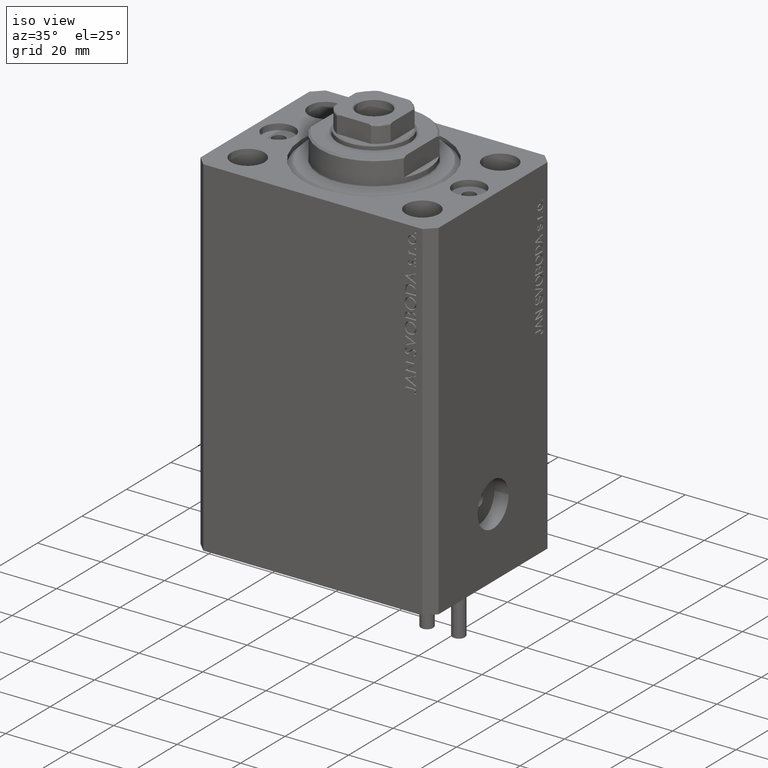
[diagram: clean part render]
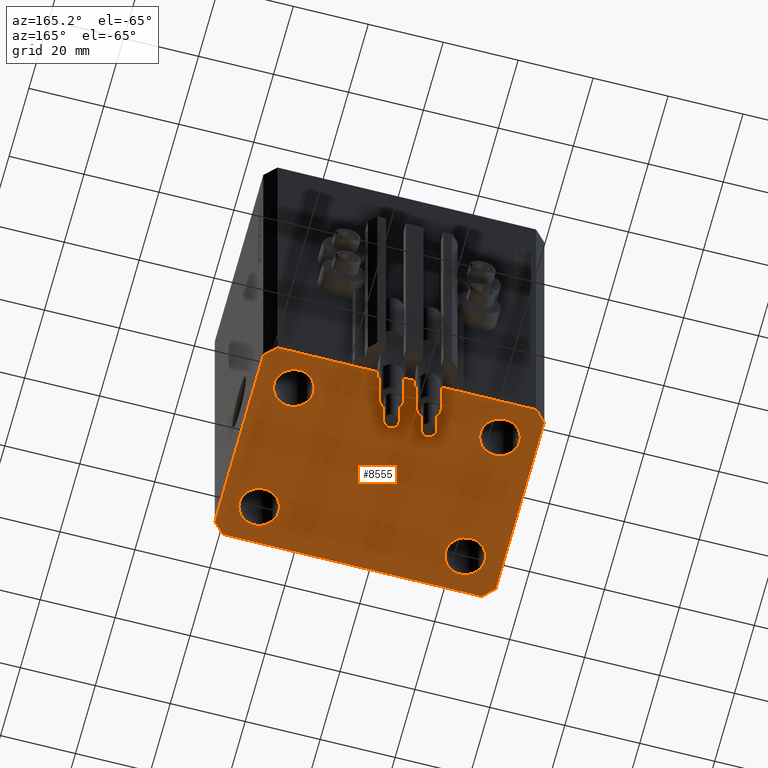
[diagram: tour spotlight — one face highlighted and labeled with its STEP entity id]
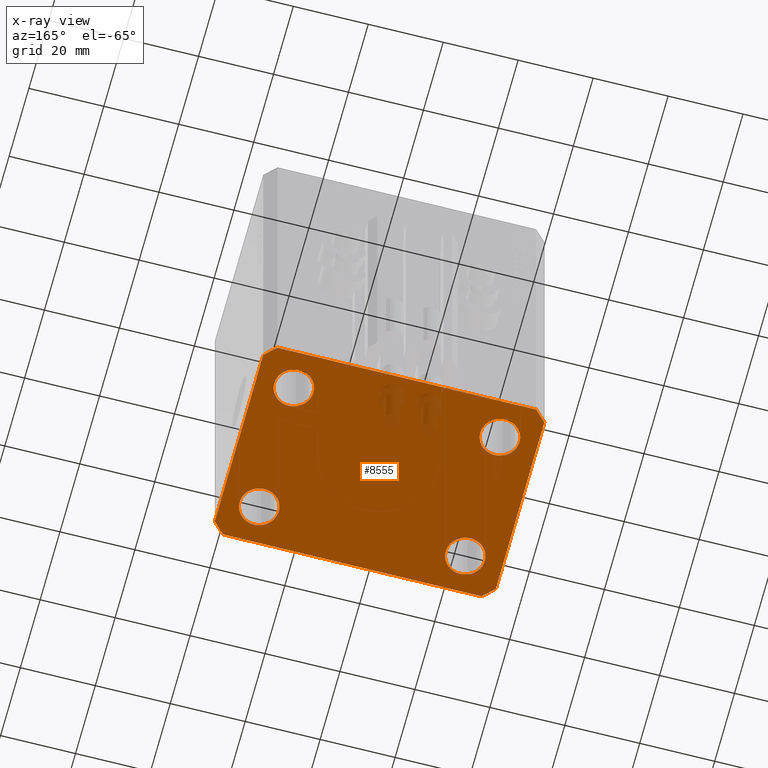
[diagram: x-ray of the same camera — body ghosted, this tour face saturated]
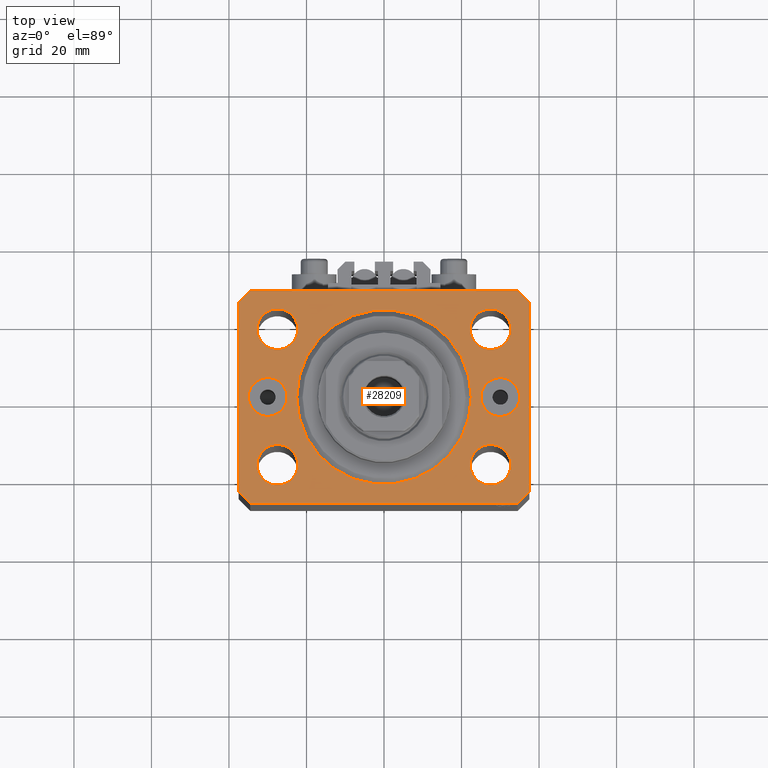
[diagram: tour spotlight — one face highlighted and labeled with its STEP entity id]
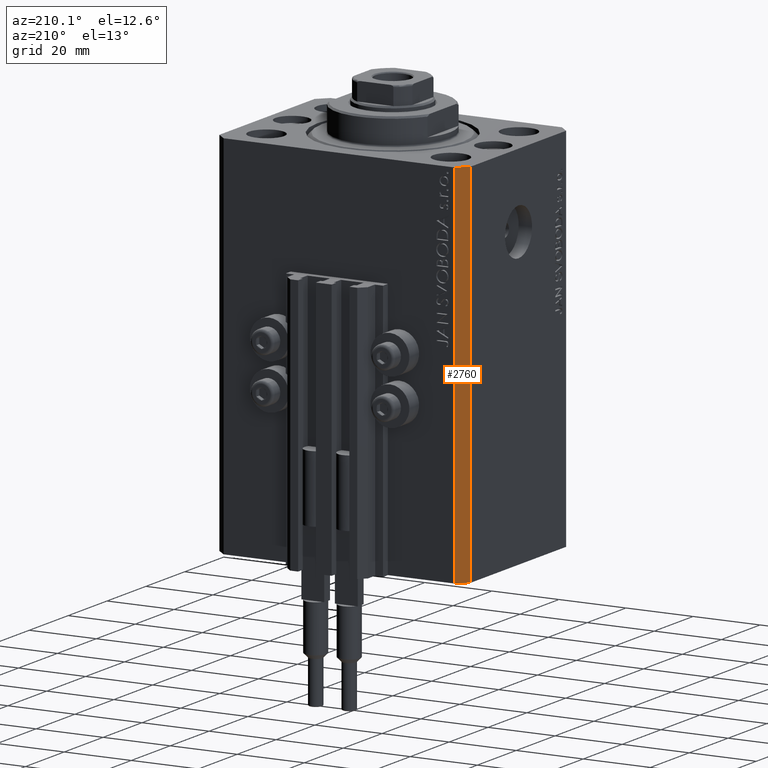
[diagram: tour spotlight — one face highlighted and labeled with its STEP entity id]
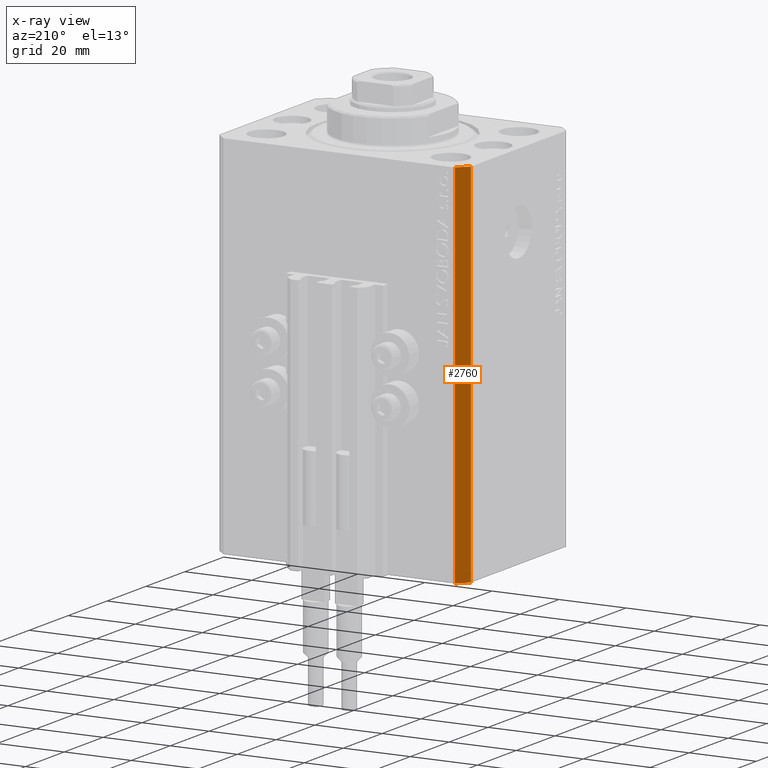
[diagram: x-ray of the same camera — body ghosted, this tour face saturated]
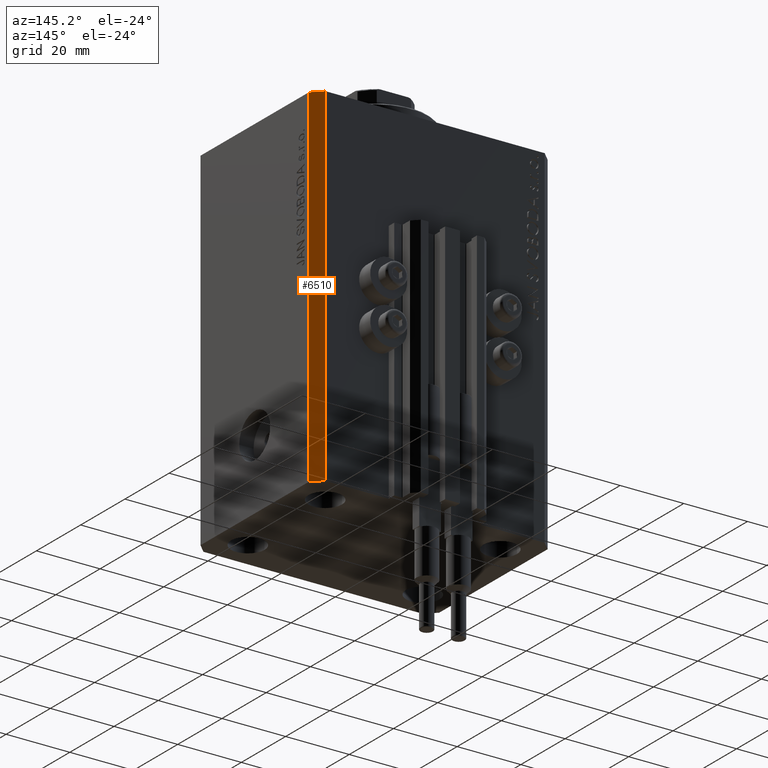
[diagram: tour spotlight — one face highlighted and labeled with its STEP entity id]
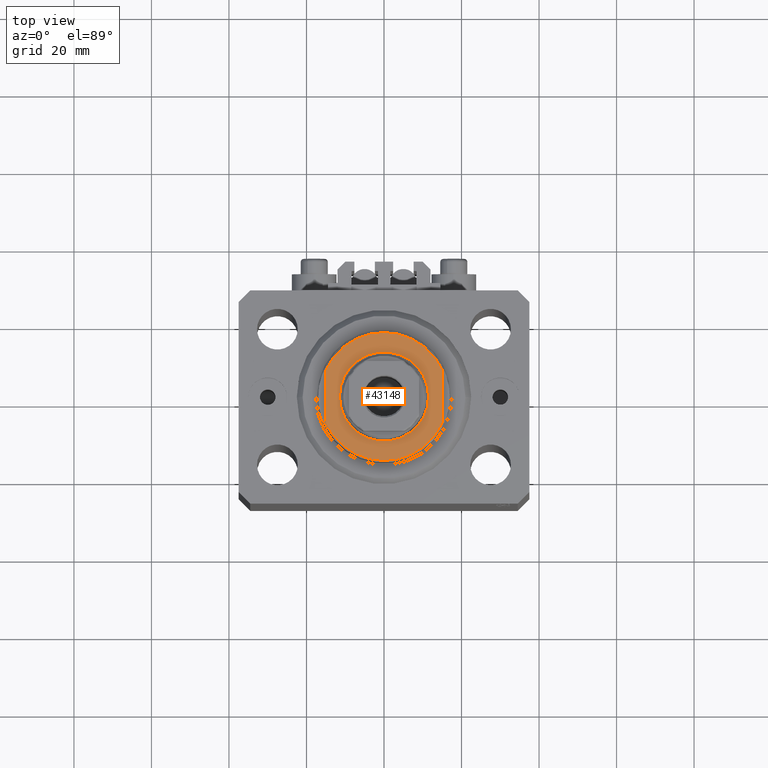
[diagram: tour spotlight — one face highlighted and labeled with its STEP entity id]
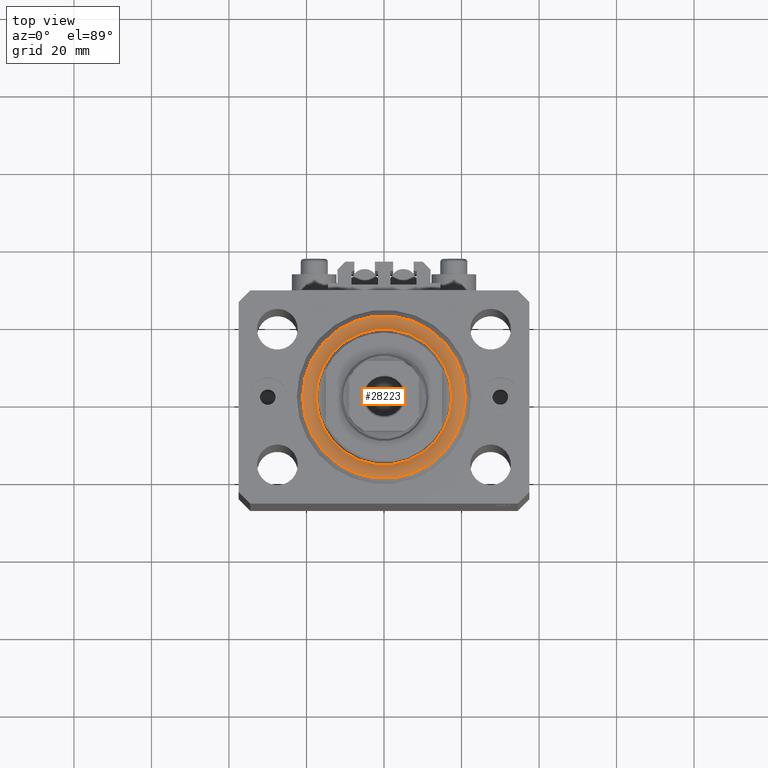
[diagram: tour spotlight — one face highlighted and labeled with its STEP entity id]
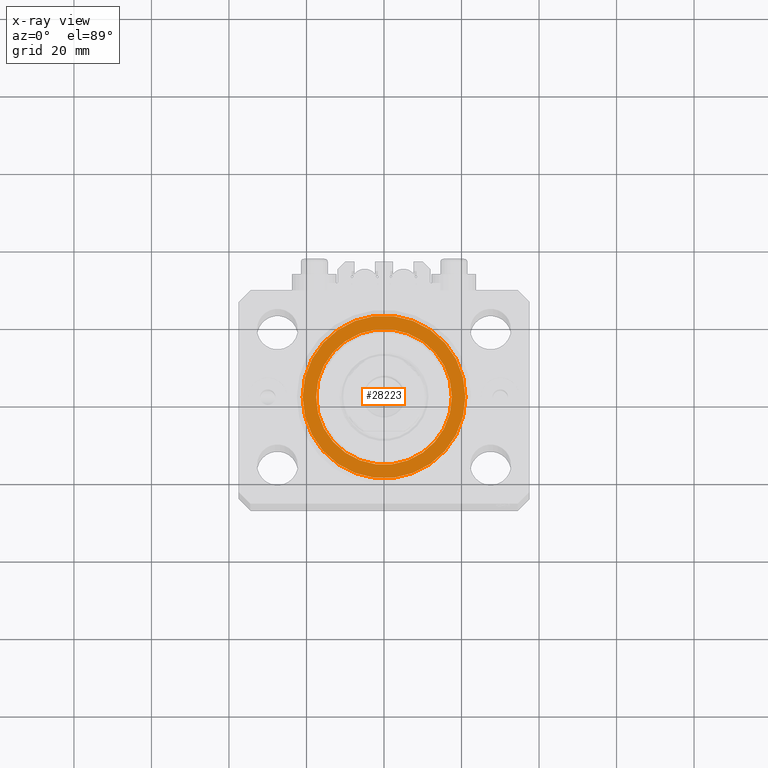
[diagram: x-ray of the same camera — body ghosted, this tour face saturated]
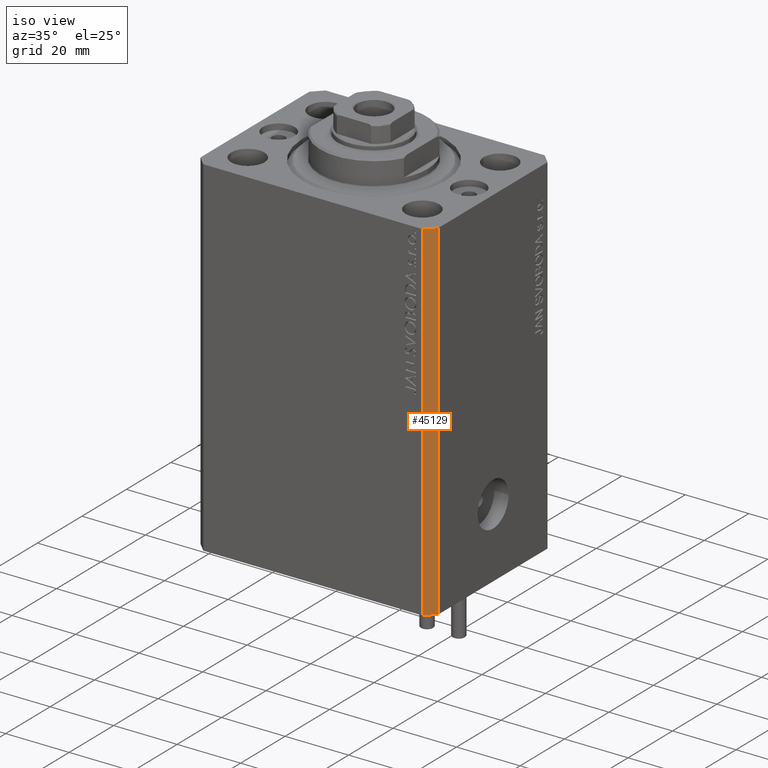
[diagram: tour spotlight — one face highlighted and labeled with its STEP entity id]
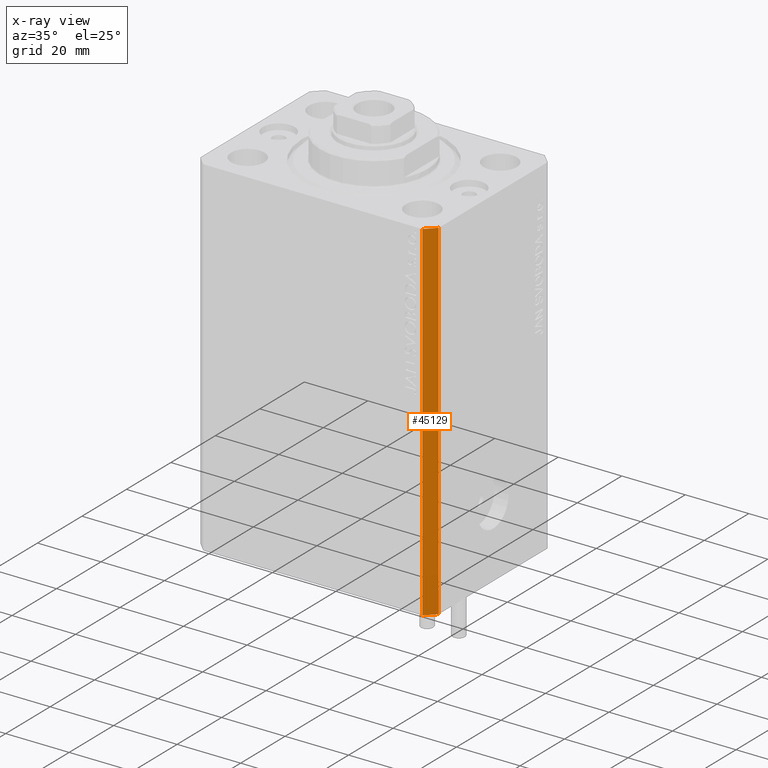
[diagram: x-ray of the same camera — body ghosted, this tour face saturated]
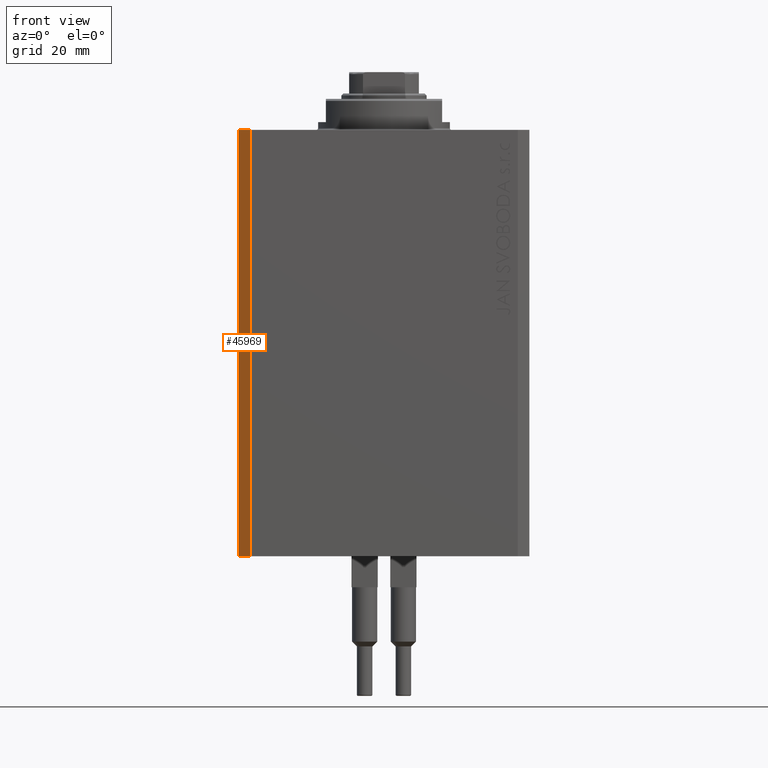
[diagram: tour spotlight — one face highlighted and labeled with its STEP entity id]
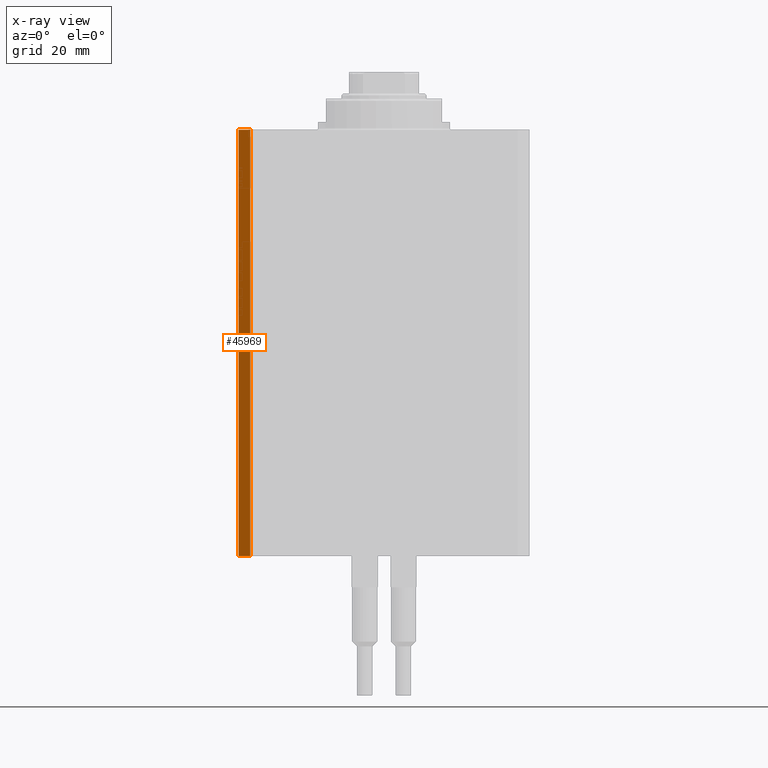
[diagram: x-ray of the same camera — body ghosted, this tour face saturated]
A machine part: a face-by-face anatomy tour. The part has 1085 B-rep faces; the first image is the clean iso view, then the 8 largest visible faces are spotlighted one at a time (largest first), each with its STEP entity span.

Face 1 — auxiliary view, entity #8555. An x-ray twin of the same camera follows (body ghosted, this face saturated) — the face is partly hidden behind the body. In plain terms, the highlighted planar face has unit normal (0, 0, 1).
Definition (entity closure, byte-faithful):
#218 = DIRECTION ( 'NONE',  ( 0.7071067811865474617, 0.7071067811865474617, 0.000000000000000000 ) ) ;
#393 = ORIENTED_EDGE ( 'NONE', *, *, #28480, .F. ) ;
#1232 = DIRECTION ( 'NONE',  ( -0.7071067811865471286, -0.7071067811865479058, 0.000000000000000000 ) ) ;
#1240 = LINE ( 'NONE', #27221, #12318 ) ;
#1631 = ORIENTED_EDGE ( 'NONE', *, *, #35757, .F. ) ;
#3232 = VECTOR ( 'NONE', #35034, 1000.000000000000114 ) ;
#3321 = VERTEX_POINT ( 'NONE', #41718 ) ;
#3470 = DIRECTION ( 'NONE',  ( 1.000000000000000000, 0.000000000000000000, 0.000000000000000000 ) ) ;
#3495 = VERTEX_POINT ( 'NONE', #22670 ) ;
#3697 = EDGE_CURVE ( 'NONE', #4683, #13049, #38661, .T. ) ;
#4078 = FACE_BOUND ( 'NONE', #13741, .T. ) ;
#4467 = DIRECTION ( 'NONE',  ( -1.000000000000000000, 0.000000000000000000, 0.000000000000000000 ) ) ;
#4631 = AXIS2_PLACEMENT_3D ( 'NONE', #47593, #10639, #8444 ) ;
#4683 = VERTEX_POINT ( 'NONE', #40195 ) ;
#4762 = EDGE_CURVE ( 'NONE', #46583, #26847, #1240, .T. ) ;
#5422 = LINE ( 'NONE', #20223, #3232 ) ;
#5515 = AXIS2_PLACEMENT_3D ( 'NONE', #37003, #6666, #7382 ) ;
#5527 = ORIENTED_EDGE ( 'NONE', *, *, #29708, .F. ) ;
#6666 = DIRECTION ( 'NONE',  ( -0.000000000000000000, -0.000000000000000000, -1.000000000000000000 ) ) ;
#7382 = DIRECTION ( 'NONE',  ( 1.000000000000000000, 0.000000000000000000, 0.000000000000000000 ) ) ;
#7570 = LINE ( 'NONE', #22376, #45602 ) ;
#8347 = VECTOR ( 'NONE', #1232, 1000.000000000000000 ) ;
#8385 = CARTESIAN_POINT ( 'NONE',  ( -34.49999999999998579, -27.49999999999999645, -110.0000000000000000 ) ) ;
#8444 = DIRECTION ( 'NONE',  ( 1.000000000000000000, 0.000000000000000000, 0.000000000000000000 ) ) ;
#8555 = ADVANCED_FACE ( 'NONE', ( #26166, #37830, #4078, #26663, #48051 ), #41000, .F. ) ;
#8717 = CARTESIAN_POINT ( 'NONE',  ( -22.24999999999999289, -17.50000000000000000, -110.0000000000000000 ) ) ;
#8985 = AXIS2_PLACEMENT_3D ( 'NONE', #28529, #47248, #28776 ) ;
#9046 = VERTEX_POINT ( 'NONE', #8717 ) ;
#9157 = EDGE_CURVE ( 'NONE', #46574, #9046, #12459, .T. ) ;
#10529 = ORIENTED_EDGE ( 'NONE', *, *, #41835, .F. ) ;
#10639 = DIRECTION ( 'NONE',  ( -0.000000000000000000, -0.000000000000000000, -1.000000000000000000 ) ) ;
#11166 = DIRECTION ( 'NONE',  ( 1.000000000000000000, 0.000000000000000000, 0.000000000000000000 ) ) ;
#11442 = ORIENTED_EDGE ( 'NONE', *, *, #38656, .F. ) ;
#12014 = CARTESIAN_POINT ( 'NONE',  ( 22.25000000000000000, 17.49999999999999289, -110.0000000000000000 ) ) ;
#12318 = VECTOR ( 'NONE', #42061, 1000.000000000000000 ) ;
#12459 = CIRCLE ( 'NONE', #5515, 5.250000000000000888 ) ;
#12915 = CARTESIAN_POINT ( 'NONE',  ( -27.49999999999999289, -17.50000000000000000, -110.0000000000000000 ) ) ;
#13049 = VERTEX_POINT ( 'NONE', #47015 ) ;
#13231 = CARTESIAN_POINT ( 'NONE',  ( -32.74999999999999289, -17.50000000000000000, -110.0000000000000000 ) ) ;
#13741 = EDGE_LOOP ( 'NONE', ( #10529, #41501 ) ) ;
#15020 = CARTESIAN_POINT ( 'NONE',  ( 34.49999999999999289, -27.49999999999999645, -110.0000000000000000 ) ) ;
#15735 = CARTESIAN_POINT ( 'NONE',  ( -34.49999999999998579, -27.49999999999999645, -110.0000000000000000 ) ) ;
#16294 = AXIS2_PLACEMENT_3D ( 'NONE', #35761, #39665, #46969 ) ;
#16328 = CIRCLE ( 'NONE', #28706, 5.250000000000000888 ) ;
#16672 = ORIENTED_EDGE ( 'NONE', *, *, #39296, .F. ) ;
#17092 = ORIENTED_EDGE ( 'NONE', *, *, #27562, .F. ) ;
#18719 = CIRCLE ( 'NONE', #16294, 5.250000000000000888 ) ;
#18994 = CARTESIAN_POINT ( 'NONE',  ( -34.49999999999999289, 27.50000000000000000, -110.0000000000000000 ) ) ;
#19347 = ORIENTED_EDGE ( 'NONE', *, *, #39805, .F. ) ;
#19371 = ORIENTED_EDGE ( 'NONE', *, *, #40806, .F. ) ;
#19917 = CARTESIAN_POINT ( 'NONE',  ( -34.49999999999999289, 27.50000000000000000, -110.0000000000000000 ) ) ;
#20223 = CARTESIAN_POINT ( 'NONE',  ( 37.50000000000051870, 24.49999999999995381, -110.0000000000000000 ) ) ;
#21155 = VERTEX_POINT ( 'NONE', #22035 ) ;
#21341 = DIRECTION ( 'NONE',  ( 1.000000000000000000, 0.000000000000000000, 0.000000000000000000 ) ) ;
#21996 = ORIENTED_EDGE ( 'NONE', *, *, #3697, .F. ) ;
#22035 = CARTESIAN_POINT ( 'NONE',  ( -32.75000000000000000, 17.49999999999999645, -110.0000000000000000 ) ) ;
#22185 = LINE ( 'NONE', #37504, #24175 ) ;
#22329 = EDGE_CURVE ( 'NONE', #3321, #25017, #22544, .T. ) ;
#22332 = CARTESIAN_POINT ( 'NONE',  ( 27.49999999999999289, -17.50000000000000000, -110.0000000000000000 ) ) ;
#22367 = AXIS2_PLACEMENT_3D ( 'NONE', #35680, #46886, #21341 ) ;
#22376 = CARTESIAN_POINT ( 'NONE',  ( 37.49999999999999289, -24.50000000000000000, -110.0000000000000000 ) ) ;
#22544 = LINE ( 'NONE', #15020, #29048 ) ;
#22670 = CARTESIAN_POINT ( 'NONE',  ( 37.50000000000051870, 24.49999999999995381, -110.0000000000000000 ) ) ;
#23003 = DIRECTION ( 'NONE',  ( 0.000000000000000000, 0.000000000000000000, 1.000000000000000000 ) ) ;
#23266 = AXIS2_PLACEMENT_3D ( 'NONE', #28109, #38569, #43172 ) ;
#23890 = EDGE_LOOP ( 'NONE', ( #37028, #19371 ) ) ;
#24047 = LINE ( 'NONE', #19917, #8347 ) ;
#24109 = EDGE_CURVE ( 'NONE', #41643, #21155, #40011, .T. ) ;
#24175 = VECTOR ( 'NONE', #4467, 1000.000000000000000 ) ;
#24679 = ORIENTED_EDGE ( 'NONE', *, *, #4762, .F. ) ;
#24981 = ORIENTED_EDGE ( 'NONE', *, *, #9157, .F. ) ;
#25017 = VERTEX_POINT ( 'NONE', #44578 ) ;
#25606 = AXIS2_PLACEMENT_3D ( 'NONE', #33697, #23003, #41491 ) ;
#26003 = CARTESIAN_POINT ( 'NONE',  ( -22.25000000000000000, 17.49999999999999645, -110.0000000000000000 ) ) ;
#26166 = FACE_BOUND ( 'NONE', #33141, .T. ) ;
#26663 = FACE_BOUND ( 'NONE', #23890, .T. ) ;
#26709 = VECTOR ( 'NONE', #39424, 1000.000000000000000 ) ;
#26847 = VERTEX_POINT ( 'NONE', #15735 ) ;
#27156 = CIRCLE ( 'NONE', #23266, 5.250000000000000888 ) ;
#27221 = CARTESIAN_POINT ( 'NONE',  ( -37.49999999999999289, -24.50000000000000000, -110.0000000000000000 ) ) ;
#27473 = ORIENTED_EDGE ( 'NONE', *, *, #38747, .F. ) ;
#27562 = EDGE_CURVE ( 'NONE', #39511, #43393, #24047, .T. ) ;
#27780 = ORIENTED_EDGE ( 'NONE', *, *, #22329, .F. ) ;
#28109 = CARTESIAN_POINT ( 'NONE',  ( 27.50000000000000000, 17.49999999999999289, -110.0000000000000000 ) ) ;
#28480 = EDGE_CURVE ( 'NONE', #25017, #3495, #7570, .T. ) ;
#28529 = CARTESIAN_POINT ( 'NONE',  ( -27.50000000000000000, 17.49999999999999645, -110.0000000000000000 ) ) ;
#28706 = AXIS2_PLACEMENT_3D ( 'NONE', #12915, #32314, #42816 ) ;
#28776 = DIRECTION ( 'NONE',  ( 1.000000000000000000, 0.000000000000000000, 0.000000000000000000 ) ) ;
#29048 = VECTOR ( 'NONE', #218, 1000.000000000000114 ) ;
#29708 = EDGE_CURVE ( 'NONE', #43393, #46583, #46966, .T. ) ;
#31198 = VERTEX_POINT ( 'NONE', #12014 ) ;
#31766 = CIRCLE ( 'NONE', #4631, 5.250000000000000888 ) ;
#31894 = CARTESIAN_POINT ( 'NONE',  ( -37.49999999999999289, 24.50000000000000000, -110.0000000000000000 ) ) ;
#32314 = DIRECTION ( 'NONE',  ( -0.000000000000000000, -0.000000000000000000, -1.000000000000000000 ) ) ;
#32691 = VERTEX_POINT ( 'NONE', #45933 ) ;
#33141 = EDGE_LOOP ( 'NONE', ( #1631, #24981 ) ) ;
#33697 = CARTESIAN_POINT ( 'NONE',  ( 0.000000000000000000, 0.000000000000000000, -110.0000000000000000 ) ) ;
#34636 = EDGE_CURVE ( 'NONE', #31198, #47628, #18719, .T. ) ;
#35034 = DIRECTION ( 'NONE',  ( -0.7071067811865364705, 0.7071067811865584529, 0.000000000000000000 ) ) ;
#35680 = CARTESIAN_POINT ( 'NONE',  ( 27.49999999999999289, -17.50000000000000000, -110.0000000000000000 ) ) ;
#35757 = EDGE_CURVE ( 'NONE', #9046, #46574, #16328, .T. ) ;
#35761 = CARTESIAN_POINT ( 'NONE',  ( 27.50000000000000000, 17.49999999999999289, -110.0000000000000000 ) ) ;
#37003 = CARTESIAN_POINT ( 'NONE',  ( -27.49999999999999289, -17.50000000000000000, -110.0000000000000000 ) ) ;
#37028 = ORIENTED_EDGE ( 'NONE', *, *, #24109, .F. ) ;
#37201 = DIRECTION ( 'NONE',  ( 1.076236605503979380E-14, 1.000000000000000000, 0.000000000000000000 ) ) ;
#37504 = CARTESIAN_POINT ( 'NONE',  ( 34.50000000000056843, 27.50000000000000000, -110.0000000000000000 ) ) ;
#37830 = FACE_BOUND ( 'NONE', #46519, .T. ) ;
#38244 = EDGE_LOOP ( 'NONE', ( #11442, #27473, #393, #27780, #16672, #24679, #5527, #17092 ) ) ;
#38569 = DIRECTION ( 'NONE',  ( -0.000000000000000000, -0.000000000000000000, -1.000000000000000000 ) ) ;
#38656 = EDGE_CURVE ( 'NONE', #32691, #39511, #22185, .T. ) ;
#38661 = CIRCLE ( 'NONE', #22367, 5.250000000000000888 ) ;
#38747 = EDGE_CURVE ( 'NONE', #3495, #32691, #5422, .T. ) ;
#39296 = EDGE_CURVE ( 'NONE', #26847, #3321, #41677, .T. ) ;
#39424 = DIRECTION ( 'NONE',  ( 0.000000000000000000, -1.000000000000000000, 0.000000000000000000 ) ) ;
#39511 = VERTEX_POINT ( 'NONE', #18994 ) ;
#39665 = DIRECTION ( 'NONE',  ( -0.000000000000000000, -0.000000000000000000, -1.000000000000000000 ) ) ;
#39805 = EDGE_CURVE ( 'NONE', #13049, #4683, #45721, .T. ) ;
#40011 = CIRCLE ( 'NONE', #8985, 5.250000000000000888 ) ;
#40195 = CARTESIAN_POINT ( 'NONE',  ( 32.74999999999999289, -17.50000000000000000, -110.0000000000000000 ) ) ;
#40806 = EDGE_CURVE ( 'NONE', #21155, #41643, #31766, .T. ) ;
#41000 = PLANE ( 'NONE',  #25606 ) ;
#41491 = DIRECTION ( 'NONE',  ( 1.000000000000000000, 0.000000000000000000, -0.000000000000000000 ) ) ;
#41501 = ORIENTED_EDGE ( 'NONE', *, *, #34636, .F. ) ;
#41549 = DIRECTION ( 'NONE',  ( -0.000000000000000000, -0.000000000000000000, -1.000000000000000000 ) ) ;
#41643 = VERTEX_POINT ( 'NONE', #26003 ) ;
#41677 = LINE ( 'NONE', #8385, #47488 ) ;
#41718 = CARTESIAN_POINT ( 'NONE',  ( 34.49999999999999289, -27.49999999999999645, -110.0000000000000000 ) ) ;
#41835 = EDGE_CURVE ( 'NONE', #47628, #31198, #27156, .T. ) ;
#42061 = DIRECTION ( 'NONE',  ( 0.7071067811865483499, -0.7071067811865466846, 0.000000000000000000 ) ) ;
#42538 = CARTESIAN_POINT ( 'NONE',  ( 32.75000000000000000, 17.49999999999999289, -110.0000000000000000 ) ) ;
#42816 = DIRECTION ( 'NONE',  ( 1.000000000000000000, 0.000000000000000000, 0.000000000000000000 ) ) ;
#43172 = DIRECTION ( 'NONE',  ( 1.000000000000000000, 0.000000000000000000, 0.000000000000000000 ) ) ;
#43393 = VERTEX_POINT ( 'NONE', #47119 ) ;
#44578 = CARTESIAN_POINT ( 'NONE',  ( 37.49999999999999289, -24.50000000000000000, -110.0000000000000000 ) ) ;
#45602 = VECTOR ( 'NONE', #37201, 1000.000000000000000 ) ;
#45721 = CIRCLE ( 'NONE', #46485, 5.250000000000000888 ) ;
#45933 = CARTESIAN_POINT ( 'NONE',  ( 34.50000000000056843, 27.50000000000000000, -110.0000000000000000 ) ) ;
#46485 = AXIS2_PLACEMENT_3D ( 'NONE', #22332, #41549, #11166 ) ;
#46519 = EDGE_LOOP ( 'NONE', ( #21996, #19347 ) ) ;
#46574 = VERTEX_POINT ( 'NONE', #13231 ) ;
#46583 = VERTEX_POINT ( 'NONE', #46771 ) ;
#46771 = CARTESIAN_POINT ( 'NONE',  ( -37.49999999999999289, -24.50000000000000000, -110.0000000000000000 ) ) ;
#46886 = DIRECTION ( 'NONE',  ( -0.000000000000000000, -0.000000000000000000, -1.000000000000000000 ) ) ;
#46966 = LINE ( 'NONE', #31894, #26709 ) ;
#46969 = DIRECTION ( 'NONE',  ( 1.000000000000000000, 0.000000000000000000, 0.000000000000000000 ) ) ;
#47015 = CARTESIAN_POINT ( 'NONE',  ( 22.24999999999999289, -17.50000000000000000, -110.0000000000000000 ) ) ;
#47119 = CARTESIAN_POINT ( 'NONE',  ( -37.49999999999999289, 24.50000000000000000, -110.0000000000000000 ) ) ;
#47248 = DIRECTION ( 'NONE',  ( -0.000000000000000000, -0.000000000000000000, -1.000000000000000000 ) ) ;
#47488 = VECTOR ( 'NONE', #3470, 1000.000000000000000 ) ;
#47593 = CARTESIAN_POINT ( 'NONE',  ( -27.50000000000000000, 17.49999999999999645, -110.0000000000000000 ) ) ;
#47628 = VERTEX_POINT ( 'NONE', #42538 ) ;
#48051 = FACE_OUTER_BOUND ( 'NONE', #38244, .T. ) ;

Face 2 — top view, entity #28209. In plain terms, the highlighted planar face has unit normal (0, 0, 1).
Definition (entity closure, byte-faithful):
#144 = LINE ( 'NONE', #22720, #15712 ) ;
#322 = EDGE_CURVE ( 'NONE', #39759, #38738, #35538, .T. ) ;
#369 = ORIENTED_EDGE ( 'NONE', *, *, #322, .T. ) ;
#420 = EDGE_CURVE ( 'NONE', #23906, #39562, #10293, .T. ) ;
#554 = AXIS2_PLACEMENT_3D ( 'NONE', #20574, #2118, #2349 ) ;
#1013 = DIRECTION ( 'NONE',  ( 0.000000000000000000, 0.000000000000000000, 1.000000000000000000 ) ) ;
#1023 = CARTESIAN_POINT ( 'NONE',  ( 27.50000000000000000, 17.49999999999999289, 0.000000000000000000 ) ) ;
#1505 = CIRCLE ( 'NONE', #13125, 5.250000000000000888 ) ;
#1755 = AXIS2_PLACEMENT_3D ( 'NONE', #25028, #2915, #17720 ) ;
#1827 = DIRECTION ( 'NONE',  ( 1.000000000000000000, 0.000000000000000000, 0.000000000000000000 ) ) ;
#2040 = EDGE_LOOP ( 'NONE', ( #10507, #21931 ) ) ;
#2118 = DIRECTION ( 'NONE',  ( 0.000000000000000000, 0.000000000000000000, 1.000000000000000000 ) ) ;
#2349 = DIRECTION ( 'NONE',  ( 1.000000000000000000, 0.000000000000000000, 0.000000000000000000 ) ) ;
#2843 = FACE_OUTER_BOUND ( 'NONE', #26124, .T. ) ;
#2915 = DIRECTION ( 'NONE',  ( 0.000000000000000000, 0.000000000000000000, 1.000000000000000000 ) ) ;
#2938 = EDGE_LOOP ( 'NONE', ( #27258, #22147 ) ) ;
#3267 = VERTEX_POINT ( 'NONE', #38307 ) ;
#3925 = CARTESIAN_POINT ( 'NONE',  ( -34.49999999999998579, -27.49999999999999645, 0.000000000000000000 ) ) ;
#4485 = CARTESIAN_POINT ( 'NONE',  ( -34.49999999999999289, 27.50000000000000000, 0.000000000000000000 ) ) ;
#4567 = VERTEX_POINT ( 'NONE', #41095 ) ;
#4890 = DIRECTION ( 'NONE',  ( 0.000000000000000000, 0.000000000000000000, 1.000000000000000000 ) ) ;
#5254 = CARTESIAN_POINT ( 'NONE',  ( -27.49999999999999289, -17.50000000000000000, 0.000000000000000000 ) ) ;
#5496 = CIRCLE ( 'NONE', #42703, 4.999999999999997335 ) ;
#5522 = EDGE_LOOP ( 'NONE', ( #6667, #30443 ) ) ;
#5752 = EDGE_CURVE ( 'NONE', #40557, #32837, #1505, .T. ) ;
#6226 = EDGE_CURVE ( 'NONE', #39562, #29481, #23167, .T. ) ;
#6332 = ORIENTED_EDGE ( 'NONE', *, *, #5752, .F. ) ;
#6583 = CARTESIAN_POINT ( 'NONE',  ( 34.99999999999999289, 0.000000000000000000, 0.000000000000000000 ) ) ;
#6667 = ORIENTED_EDGE ( 'NONE', *, *, #42405, .F. ) ;
#7225 = DIRECTION ( 'NONE',  ( 1.000000000000000000, 0.000000000000000000, -0.000000000000000000 ) ) ;
#7798 = VECTOR ( 'NONE', #10369, 1000.000000000000114 ) ;
#7808 = EDGE_CURVE ( 'NONE', #8490, #44165, #39660, .T. ) ;
#7857 = DIRECTION ( 'NONE',  ( 1.000000000000000000, 0.000000000000000000, 0.000000000000000000 ) ) ;
#8490 = VERTEX_POINT ( 'NONE', #29329 ) ;
#8537 = CIRCLE ( 'NONE', #35661, 5.250000000000000888 ) ;
#8968 = DIRECTION ( 'NONE',  ( 1.000000000000000000, 0.000000000000000000, 0.000000000000000000 ) ) ;
#9218 = VECTOR ( 'NONE', #40183, 1000.000000000000000 ) ;
#9494 = CIRCLE ( 'NONE', #33536, 5.250000000000000888 ) ;
#9769 = ORIENTED_EDGE ( 'NONE', *, *, #38923, .T. ) ;
#10293 = LINE ( 'NONE', #24866, #9218 ) ;
#10369 = DIRECTION ( 'NONE',  ( -0.7071067811865364705, 0.7071067811865584529, 0.000000000000000000 ) ) ;
#10375 = FACE_BOUND ( 'NONE', #31485, .T. ) ;
#10507 = ORIENTED_EDGE ( 'NONE', *, *, #45955, .F. ) ;
#10776 = ORIENTED_EDGE ( 'NONE', *, *, #23215, .F. ) ;
#10792 = VECTOR ( 'NONE', #42140, 1000.000000000000000 ) ;
#11488 = VERTEX_POINT ( 'NONE', #43123 ) ;
#12305 = CARTESIAN_POINT ( 'NONE',  ( 37.49999999999999289, -24.50000000000000000, 0.000000000000000000 ) ) ;
#12665 = EDGE_CURVE ( 'NONE', #31089, #30184, #32723, .T. ) ;
#12669 = EDGE_CURVE ( 'NONE', #15398, #4567, #14880, .T. ) ;
#13125 = AXIS2_PLACEMENT_3D ( 'NONE', #1023, #19219, #22378 ) ;
#13303 = CARTESIAN_POINT ( 'NONE',  ( 37.50000000000051870, 24.49999999999995381, 0.000000000000000000 ) ) ;
#13586 = EDGE_CURVE ( 'NONE', #47093, #45108, #28149, .T. ) ;
#13774 = DIRECTION ( 'NONE',  ( 0.7071067811865474617, 0.7071067811865474617, 0.000000000000000000 ) ) ;
#13851 = DIRECTION ( 'NONE',  ( 1.076236605503979380E-14, 1.000000000000000000, 0.000000000000000000 ) ) ;
#13971 = AXIS2_PLACEMENT_3D ( 'NONE', #46412, #43469, #35677 ) ;
#14437 = AXIS2_PLACEMENT_3D ( 'NONE', #22814, #19410, #8968 ) ;
#14733 = DIRECTION ( 'NONE',  ( 0.000000000000000000, 0.000000000000000000, 1.000000000000000000 ) ) ;
#14880 = CIRCLE ( 'NONE', #41307, 5.000000000000000888 ) ;
#15142 = EDGE_CURVE ( 'NONE', #36870, #3267, #23496, .T. ) ;
#15274 = CIRCLE ( 'NONE', #554, 22.50000000000000355 ) ;
#15398 = VERTEX_POINT ( 'NONE', #20848 ) ;
#15563 = DIRECTION ( 'NONE',  ( 1.000000000000000000, 0.000000000000000000, 0.000000000000000000 ) ) ;
#15633 = VECTOR ( 'NONE', #41583, 1000.000000000000000 ) ;
#15712 = VECTOR ( 'NONE', #34125, 1000.000000000000000 ) ;
#16231 = ORIENTED_EDGE ( 'NONE', *, *, #35939, .T. ) ;
#16595 = DIRECTION ( 'NONE',  ( 0.7071067811865483499, -0.7071067811865466846, 0.000000000000000000 ) ) ;
#17390 = ORIENTED_EDGE ( 'NONE', *, *, #46991, .T. ) ;
#17625 = EDGE_CURVE ( 'NONE', #11488, #34937, #9494, .T. ) ;
#17648 = CARTESIAN_POINT ( 'NONE',  ( 0.000000000000000000, 0.000000000000000000, 0.000000000000000000 ) ) ;
#17720 = DIRECTION ( 'NONE',  ( 1.000000000000000000, 0.000000000000000000, 0.000000000000000000 ) ) ;
#17976 = CARTESIAN_POINT ( 'NONE',  ( 22.25000000000000000, 17.49999999999999289, 0.000000000000000000 ) ) ;
#18296 = CARTESIAN_POINT ( 'NONE',  ( -27.49999999999999289, -17.50000000000000000, 0.000000000000000000 ) ) ;
#18508 = CARTESIAN_POINT ( 'NONE',  ( 37.50000000000051870, 24.49999999999995381, 0.000000000000000000 ) ) ;
#18607 = FACE_BOUND ( 'NONE', #22416, .T. ) ;
#19219 = DIRECTION ( 'NONE',  ( 0.000000000000000000, 0.000000000000000000, 1.000000000000000000 ) ) ;
#19410 = DIRECTION ( 'NONE',  ( 0.000000000000000000, 0.000000000000000000, 1.000000000000000000 ) ) ;
#19787 = AXIS2_PLACEMENT_3D ( 'NONE', #34272, #1013, #15563 ) ;
#20138 = CIRCLE ( 'NONE', #26353, 5.250000000000000888 ) ;
#20574 = CARTESIAN_POINT ( 'NONE',  ( 0.000000000000000000, 0.000000000000000000, 0.000000000000000000 ) ) ;
#20848 = CARTESIAN_POINT ( 'NONE',  ( -24.99999999999999645, 0.000000000000000000, 0.000000000000000000 ) ) ;
#21158 = VERTEX_POINT ( 'NONE', #44402 ) ;
#21844 = ORIENTED_EDGE ( 'NONE', *, *, #26975, .F. ) ;
#21931 = ORIENTED_EDGE ( 'NONE', *, *, #13586, .F. ) ;
#22147 = ORIENTED_EDGE ( 'NONE', *, *, #17625, .F. ) ;
#22378 = DIRECTION ( 'NONE',  ( 1.000000000000000000, 0.000000000000000000, 0.000000000000000000 ) ) ;
#22416 = EDGE_LOOP ( 'NONE', ( #44592, #21844 ) ) ;
#22720 = CARTESIAN_POINT ( 'NONE',  ( -37.49999999999999289, 24.50000000000000000, 0.000000000000000000 ) ) ;
#22814 = CARTESIAN_POINT ( 'NONE',  ( -30.00000000000000000, 0.000000000000000000, 0.000000000000000000 ) ) ;
#22883 = CARTESIAN_POINT ( 'NONE',  ( -22.24999999999999289, -17.50000000000000000, 0.000000000000000000 ) ) ;
#23091 = LINE ( 'NONE', #3925, #15633 ) ;
#23167 = LINE ( 'NONE', #4485, #10792 ) ;
#23215 = EDGE_CURVE ( 'NONE', #32837, #40557, #31442, .T. ) ;
#23284 = VECTOR ( 'NONE', #16595, 1000.000000000000000 ) ;
#23496 = CIRCLE ( 'NONE', #33581, 5.250000000000000888 ) ;
#23603 = CARTESIAN_POINT ( 'NONE',  ( -34.49999999999999289, 27.50000000000000000, 0.000000000000000000 ) ) ;
#23906 = VERTEX_POINT ( 'NONE', #33431 ) ;
#24265 = CARTESIAN_POINT ( 'NONE',  ( -22.50000000000000355, 2.755455298081544383E-15, 0.000000000000000000 ) ) ;
#24389 = ORIENTED_EDGE ( 'NONE', *, *, #28982, .F. ) ;
#24605 = AXIS2_PLACEMENT_3D ( 'NONE', #17648, #29310, #7225 ) ;
#24866 = CARTESIAN_POINT ( 'NONE',  ( 34.50000000000056843, 27.50000000000000000, 0.000000000000000000 ) ) ;
#24957 = CARTESIAN_POINT ( 'NONE',  ( 34.49999999999999289, -27.49999999999999645, 0.000000000000000000 ) ) ;
#25028 = CARTESIAN_POINT ( 'NONE',  ( -27.50000000000000000, 17.49999999999999645, 0.000000000000000000 ) ) ;
#25680 = DIRECTION ( 'NONE',  ( 1.000000000000000000, 0.000000000000000000, 0.000000000000000000 ) ) ;
#26073 = ORIENTED_EDGE ( 'NONE', *, *, #12669, .F. ) ;
#26099 = CARTESIAN_POINT ( 'NONE',  ( -37.49999999999999289, 24.50000000000000000, 0.000000000000000000 ) ) ;
#26124 = EDGE_LOOP ( 'NONE', ( #44065, #28328, #31386, #34762, #9769, #47152, #16231, #33845 ) ) ;
#26353 = AXIS2_PLACEMENT_3D ( 'NONE', #5254, #41951, #38769 ) ;
#26921 = DIRECTION ( 'NONE',  ( 1.000000000000000000, 0.000000000000000000, 0.000000000000000000 ) ) ;
#26975 = EDGE_CURVE ( 'NONE', #34881, #21158, #15274, .T. ) ;
#27088 = DIRECTION ( 'NONE',  ( 0.000000000000000000, -0.000000000000000000, -1.000000000000000000 ) ) ;
#27251 = DIRECTION ( 'NONE',  ( 0.000000000000000000, 0.000000000000000000, 1.000000000000000000 ) ) ;
#27258 = ORIENTED_EDGE ( 'NONE', *, *, #44623, .F. ) ;
#27459 = DIRECTION ( 'NONE',  ( 1.000000000000000000, 0.000000000000000000, 0.000000000000000000 ) ) ;
#27467 = AXIS2_PLACEMENT_3D ( 'NONE', #43857, #36548, #47505 ) ;
#27931 = CARTESIAN_POINT ( 'NONE',  ( -27.50000000000000000, 17.49999999999999645, 0.000000000000000000 ) ) ;
#28070 = VECTOR ( 'NONE', #13774, 1000.000000000000114 ) ;
#28149 = CIRCLE ( 'NONE', #1755, 5.250000000000000888 ) ;
#28209 = ADVANCED_FACE ( 'NONE', ( #2843, #40018, #33185, #47558, #40751, #18607, #10375, #40258 ), #36841, .T. ) ;
#28328 = ORIENTED_EDGE ( 'NONE', *, *, #6226, .T. ) ;
#28802 = CARTESIAN_POINT ( 'NONE',  ( 34.49999999999999289, -27.49999999999999645, 0.000000000000000000 ) ) ;
#28832 = CARTESIAN_POINT ( 'NONE',  ( -32.75000000000000000, 17.49999999999999645, 0.000000000000000000 ) ) ;
#28982 = EDGE_CURVE ( 'NONE', #4567, #15398, #29183, .T. ) ;
#29183 = CIRCLE ( 'NONE', #14437, 5.000000000000000888 ) ;
#29310 = DIRECTION ( 'NONE',  ( 0.000000000000000000, 0.000000000000000000, 1.000000000000000000 ) ) ;
#29329 = CARTESIAN_POINT ( 'NONE',  ( -37.49999999999999289, -24.50000000000000000, 0.000000000000000000 ) ) ;
#29384 = EDGE_CURVE ( 'NONE', #21158, #34881, #35969, .T. ) ;
#29481 = VERTEX_POINT ( 'NONE', #26099 ) ;
#30184 = VERTEX_POINT ( 'NONE', #12305 ) ;
#30443 = ORIENTED_EDGE ( 'NONE', *, *, #15142, .F. ) ;
#30616 = VERTEX_POINT ( 'NONE', #18508 ) ;
#31089 = VERTEX_POINT ( 'NONE', #28802 ) ;
#31386 = ORIENTED_EDGE ( 'NONE', *, *, #32023, .T. ) ;
#31442 = CIRCLE ( 'NONE', #19787, 5.250000000000000888 ) ;
#31448 = CARTESIAN_POINT ( 'NONE',  ( 30.00000000000000000, 0.000000000000000000, 0.000000000000000000 ) ) ;
#31485 = EDGE_LOOP ( 'NONE', ( #26073, #24389 ) ) ;
#31632 = CARTESIAN_POINT ( 'NONE',  ( 25.00000000000000000, 6.123233995736762338E-16, 0.000000000000000000 ) ) ;
#31836 = CIRCLE ( 'NONE', #13971, 5.250000000000000888 ) ;
#32023 = EDGE_CURVE ( 'NONE', #29481, #8490, #144, .T. ) ;
#32582 = VECTOR ( 'NONE', #13851, 1000.000000000000000 ) ;
#32723 = LINE ( 'NONE', #24957, #28070 ) ;
#32837 = VERTEX_POINT ( 'NONE', #42528 ) ;
#33185 = FACE_BOUND ( 'NONE', #37262, .T. ) ;
#33431 = CARTESIAN_POINT ( 'NONE',  ( 34.50000000000056843, 27.50000000000000000, 0.000000000000000000 ) ) ;
#33536 = AXIS2_PLACEMENT_3D ( 'NONE', #18296, #47720, #7857 ) ;
#33581 = AXIS2_PLACEMENT_3D ( 'NONE', #38434, #27251, #42567 ) ;
#33845 = ORIENTED_EDGE ( 'NONE', *, *, #47138, .T. ) ;
#34125 = DIRECTION ( 'NONE',  ( 0.000000000000000000, -1.000000000000000000, 0.000000000000000000 ) ) ;
#34272 = CARTESIAN_POINT ( 'NONE',  ( 27.50000000000000000, 17.49999999999999289, 0.000000000000000000 ) ) ;
#34762 = ORIENTED_EDGE ( 'NONE', *, *, #7808, .T. ) ;
#34881 = VERTEX_POINT ( 'NONE', #24265 ) ;
#34937 = VERTEX_POINT ( 'NONE', #22883 ) ;
#35538 = CIRCLE ( 'NONE', #39442, 4.999999999999997335 ) ;
#35661 = AXIS2_PLACEMENT_3D ( 'NONE', #27931, #4890, #27459 ) ;
#35677 = DIRECTION ( 'NONE',  ( 1.000000000000000000, 0.000000000000000000, 0.000000000000000000 ) ) ;
#35755 = CARTESIAN_POINT ( 'NONE',  ( -37.49999999999999289, -24.50000000000000000, 0.000000000000000000 ) ) ;
#35859 = LINE ( 'NONE', #13303, #7798 ) ;
#35939 = EDGE_CURVE ( 'NONE', #30184, #30616, #47879, .T. ) ;
#35969 = CIRCLE ( 'NONE', #27467, 22.50000000000000355 ) ;
#36548 = DIRECTION ( 'NONE',  ( 0.000000000000000000, 0.000000000000000000, 1.000000000000000000 ) ) ;
#36841 = PLANE ( 'NONE',  #24605 ) ;
#36870 = VERTEX_POINT ( 'NONE', #47651 ) ;
#37262 = EDGE_LOOP ( 'NONE', ( #10776, #6332 ) ) ;
#37511 = CARTESIAN_POINT ( 'NONE',  ( -34.49999999999998579, -27.49999999999999645, 0.000000000000000000 ) ) ;
#38146 = CARTESIAN_POINT ( 'NONE',  ( -22.25000000000000000, 17.49999999999999645, 0.000000000000000000 ) ) ;
#38307 = CARTESIAN_POINT ( 'NONE',  ( 32.74999999999999289, -17.50000000000000000, 0.000000000000000000 ) ) ;
#38434 = CARTESIAN_POINT ( 'NONE',  ( 27.49999999999999289, -17.50000000000000000, 0.000000000000000000 ) ) ;
#38738 = VERTEX_POINT ( 'NONE', #31632 ) ;
#38769 = DIRECTION ( 'NONE',  ( 1.000000000000000000, 0.000000000000000000, 0.000000000000000000 ) ) ;
#38923 = EDGE_CURVE ( 'NONE', #44165, #31089, #23091, .T. ) ;
#39442 = AXIS2_PLACEMENT_3D ( 'NONE', #31448, #27088, #1827 ) ;
#39562 = VERTEX_POINT ( 'NONE', #23603 ) ;
#39660 = LINE ( 'NONE', #35755, #23284 ) ;
#39759 = VERTEX_POINT ( 'NONE', #6583 ) ;
#40018 = FACE_BOUND ( 'NONE', #2040, .T. ) ;
#40183 = DIRECTION ( 'NONE',  ( -1.000000000000000000, 0.000000000000000000, 0.000000000000000000 ) ) ;
#40258 = FACE_BOUND ( 'NONE', #47978, .T. ) ;
#40264 = CARTESIAN_POINT ( 'NONE',  ( -30.00000000000000000, 0.000000000000000000, 0.000000000000000000 ) ) ;
#40557 = VERTEX_POINT ( 'NONE', #17976 ) ;
#40751 = FACE_BOUND ( 'NONE', #2938, .T. ) ;
#41095 = CARTESIAN_POINT ( 'NONE',  ( -34.99999999999999289, 6.123233995736768255E-16, 0.000000000000000000 ) ) ;
#41307 = AXIS2_PLACEMENT_3D ( 'NONE', #40264, #14733, #25680 ) ;
#41583 = DIRECTION ( 'NONE',  ( 1.000000000000000000, 0.000000000000000000, 0.000000000000000000 ) ) ;
#41951 = DIRECTION ( 'NONE',  ( 0.000000000000000000, 0.000000000000000000, 1.000000000000000000 ) ) ;
#42140 = DIRECTION ( 'NONE',  ( -0.7071067811865471286, -0.7071067811865479058, 0.000000000000000000 ) ) ;
#42405 = EDGE_CURVE ( 'NONE', #3267, #36870, #31836, .T. ) ;
#42477 = CARTESIAN_POINT ( 'NONE',  ( 30.00000000000000000, 0.000000000000000000, 0.000000000000000000 ) ) ;
#42528 = CARTESIAN_POINT ( 'NONE',  ( 32.75000000000000000, 17.49999999999999289, 0.000000000000000000 ) ) ;
#42567 = DIRECTION ( 'NONE',  ( 1.000000000000000000, 0.000000000000000000, 0.000000000000000000 ) ) ;
#42703 = AXIS2_PLACEMENT_3D ( 'NONE', #42477, #42719, #26921 ) ;
#42719 = DIRECTION ( 'NONE',  ( 0.000000000000000000, -0.000000000000000000, -1.000000000000000000 ) ) ;
#43123 = CARTESIAN_POINT ( 'NONE',  ( -32.74999999999999289, -17.50000000000000000, 0.000000000000000000 ) ) ;
#43469 = DIRECTION ( 'NONE',  ( 0.000000000000000000, 0.000000000000000000, 1.000000000000000000 ) ) ;
#43857 = CARTESIAN_POINT ( 'NONE',  ( 0.000000000000000000, 0.000000000000000000, 0.000000000000000000 ) ) ;
#44065 = ORIENTED_EDGE ( 'NONE', *, *, #420, .T. ) ;
#44165 = VERTEX_POINT ( 'NONE', #37511 ) ;
#44224 = CARTESIAN_POINT ( 'NONE',  ( 37.49999999999999289, -24.50000000000000000, 0.000000000000000000 ) ) ;
#44402 = CARTESIAN_POINT ( 'NONE',  ( 22.50000000000000355, 0.000000000000000000, 0.000000000000000000 ) ) ;
#44592 = ORIENTED_EDGE ( 'NONE', *, *, #29384, .F. ) ;
#44623 = EDGE_CURVE ( 'NONE', #34937, #11488, #20138, .T. ) ;
#45108 = VERTEX_POINT ( 'NONE', #38146 ) ;
#45955 = EDGE_CURVE ( 'NONE', #45108, #47093, #8537, .T. ) ;
#46412 = CARTESIAN_POINT ( 'NONE',  ( 27.49999999999999289, -17.50000000000000000, 0.000000000000000000 ) ) ;
#46991 = EDGE_CURVE ( 'NONE', #38738, #39759, #5496, .T. ) ;
#47093 = VERTEX_POINT ( 'NONE', #28832 ) ;
#47138 = EDGE_CURVE ( 'NONE', #30616, #23906, #35859, .T. ) ;
#47152 = ORIENTED_EDGE ( 'NONE', *, *, #12665, .T. ) ;
#47505 = DIRECTION ( 'NONE',  ( 1.000000000000000000, 0.000000000000000000, 0.000000000000000000 ) ) ;
#47558 = FACE_BOUND ( 'NONE', #5522, .T. ) ;
#47651 = CARTESIAN_POINT ( 'NONE',  ( 22.24999999999999289, -17.50000000000000000, 0.000000000000000000 ) ) ;
#47720 = DIRECTION ( 'NONE',  ( 0.000000000000000000, 0.000000000000000000, 1.000000000000000000 ) ) ;
#47879 = LINE ( 'NONE', #44224, #32582 ) ;
#47978 = EDGE_LOOP ( 'NONE', ( #369, #17390 ) ) ;

Face 3 — auxiliary view, entity #2760. An x-ray twin of the same camera follows (body ghosted, this face saturated) — the face is partly hidden behind the body. In plain terms, the highlighted planar face has unit normal (-0.7071, 0.7071, 0).
Definition (entity closure, byte-faithful):
#1232 = DIRECTION ( 'NONE',  ( -0.7071067811865471286, -0.7071067811865479058, 0.000000000000000000 ) ) ;
#2760 = ADVANCED_FACE ( 'NONE', ( #30215 ), #7874, .T. ) ;
#3796 = CARTESIAN_POINT ( 'NONE',  ( -34.49999999999999289, 27.50000000000000000, -110.0000000000000000 ) ) ;
#3835 = EDGE_CURVE ( 'NONE', #43393, #29481, #7733, .T. ) ;
#4485 = CARTESIAN_POINT ( 'NONE',  ( -34.49999999999999289, 27.50000000000000000, 0.000000000000000000 ) ) ;
#6226 = EDGE_CURVE ( 'NONE', #39562, #29481, #23167, .T. ) ;
#7022 = VECTOR ( 'NONE', #18596, 1000.000000000000000 ) ;
#7733 = LINE ( 'NONE', #37368, #27788 ) ;
#7874 = PLANE ( 'NONE',  #29417 ) ;
#8347 = VECTOR ( 'NONE', #1232, 1000.000000000000000 ) ;
#9648 = EDGE_CURVE ( 'NONE', #39511, #39562, #37067, .T. ) ;
#10792 = VECTOR ( 'NONE', #42140, 1000.000000000000000 ) ;
#18321 = ORIENTED_EDGE ( 'NONE', *, *, #6226, .F. ) ;
#18596 = DIRECTION ( 'NONE',  ( 0.000000000000000000, 0.000000000000000000, 1.000000000000000000 ) ) ;
#18766 = EDGE_LOOP ( 'NONE', ( #18321, #42693, #26113, #43695 ) ) ;
#18994 = CARTESIAN_POINT ( 'NONE',  ( -34.49999999999999289, 27.50000000000000000, -110.0000000000000000 ) ) ;
#19038 = CARTESIAN_POINT ( 'NONE',  ( -34.49999999999999289, 27.50000000000000000, -110.0000000000000000 ) ) ;
#19917 = CARTESIAN_POINT ( 'NONE',  ( -34.49999999999999289, 27.50000000000000000, -110.0000000000000000 ) ) ;
#23167 = LINE ( 'NONE', #4485, #10792 ) ;
#23603 = CARTESIAN_POINT ( 'NONE',  ( -34.49999999999999289, 27.50000000000000000, 0.000000000000000000 ) ) ;
#24047 = LINE ( 'NONE', #19917, #8347 ) ;
#25722 = DIRECTION ( 'NONE',  ( 0.000000000000000000, 0.000000000000000000, 1.000000000000000000 ) ) ;
#26099 = CARTESIAN_POINT ( 'NONE',  ( -37.49999999999999289, 24.50000000000000000, 0.000000000000000000 ) ) ;
#26113 = ORIENTED_EDGE ( 'NONE', *, *, #27562, .T. ) ;
#27562 = EDGE_CURVE ( 'NONE', #39511, #43393, #24047, .T. ) ;
#27788 = VECTOR ( 'NONE', #25722, 1000.000000000000000 ) ;
#29417 = AXIS2_PLACEMENT_3D ( 'NONE', #19038, #40696, #37518 ) ;
#29481 = VERTEX_POINT ( 'NONE', #26099 ) ;
#30215 = FACE_OUTER_BOUND ( 'NONE', #18766, .T. ) ;
#37067 = LINE ( 'NONE', #3796, #7022 ) ;
#37368 = CARTESIAN_POINT ( 'NONE',  ( -37.49999999999999289, 24.50000000000000000, -110.0000000000000000 ) ) ;
#37518 = DIRECTION ( 'NONE',  ( -0.7071067811865471286, -0.7071067811865479058, 0.000000000000000000 ) ) ;
#39511 = VERTEX_POINT ( 'NONE', #18994 ) ;
#39562 = VERTEX_POINT ( 'NONE', #23603 ) ;
#40696 = DIRECTION ( 'NONE',  ( -0.7071067811865479058, 0.7071067811865471286, 0.000000000000000000 ) ) ;
#42140 = DIRECTION ( 'NONE',  ( -0.7071067811865471286, -0.7071067811865479058, 0.000000000000000000 ) ) ;
#42693 = ORIENTED_EDGE ( 'NONE', *, *, #9648, .F. ) ;
#43393 = VERTEX_POINT ( 'NONE', #47119 ) ;
#43695 = ORIENTED_EDGE ( 'NONE', *, *, #3835, .T. ) ;
#47119 = CARTESIAN_POINT ( 'NONE',  ( -37.49999999999999289, 24.50000000000000000, -110.0000000000000000 ) ) ;

Face 4 — auxiliary view, entity #6510. In plain terms, the highlighted planar face has unit normal (0.7071, 0.7071, 0).
Definition (entity closure, byte-faithful):
#3232 = VECTOR ( 'NONE', #35034, 1000.000000000000114 ) ;
#3495 = VERTEX_POINT ( 'NONE', #22670 ) ;
#3499 = VECTOR ( 'NONE', #28412, 1000.000000000000000 ) ;
#4653 = DIRECTION ( 'NONE',  ( 0.000000000000000000, 0.000000000000000000, 1.000000000000000000 ) ) ;
#5422 = LINE ( 'NONE', #20223, #3232 ) ;
#5620 = LINE ( 'NONE', #9011, #3499 ) ;
#6510 = ADVANCED_FACE ( 'NONE', ( #18602 ), #43668, .T. ) ;
#7454 = CARTESIAN_POINT ( 'NONE',  ( 37.50000000000051870, 24.49999999999995381, -110.0000000000000000 ) ) ;
#7798 = VECTOR ( 'NONE', #10369, 1000.000000000000114 ) ;
#9011 = CARTESIAN_POINT ( 'NONE',  ( 37.50000000000051870, 24.49999999999995381, -110.0000000000000000 ) ) ;
#10369 = DIRECTION ( 'NONE',  ( -0.7071067811865364705, 0.7071067811865584529, 0.000000000000000000 ) ) ;
#11437 = LINE ( 'NONE', #40618, #31934 ) ;
#13303 = CARTESIAN_POINT ( 'NONE',  ( 37.50000000000051870, 24.49999999999995381, 0.000000000000000000 ) ) ;
#18508 = CARTESIAN_POINT ( 'NONE',  ( 37.50000000000051870, 24.49999999999995381, 0.000000000000000000 ) ) ;
#18602 = FACE_OUTER_BOUND ( 'NONE', #41211, .T. ) ;
#20223 = CARTESIAN_POINT ( 'NONE',  ( 37.50000000000051870, 24.49999999999995381, -110.0000000000000000 ) ) ;
#21670 = AXIS2_PLACEMENT_3D ( 'NONE', #7454, #22254, #22489 ) ;
#21867 = ORIENTED_EDGE ( 'NONE', *, *, #23332, .F. ) ;
#22254 = DIRECTION ( 'NONE',  ( 0.7071067811865585639, 0.7071067811865365815, -0.000000000000000000 ) ) ;
#22489 = DIRECTION ( 'NONE',  ( -0.7071067811865364705, 0.7071067811865584529, 0.000000000000000000 ) ) ;
#22670 = CARTESIAN_POINT ( 'NONE',  ( 37.50000000000051870, 24.49999999999995381, -110.0000000000000000 ) ) ;
#23332 = EDGE_CURVE ( 'NONE', #3495, #30616, #5620, .T. ) ;
#23906 = VERTEX_POINT ( 'NONE', #33431 ) ;
#28412 = DIRECTION ( 'NONE',  ( 0.000000000000000000, 0.000000000000000000, 1.000000000000000000 ) ) ;
#29406 = ORIENTED_EDGE ( 'NONE', *, *, #47138, .F. ) ;
#30616 = VERTEX_POINT ( 'NONE', #18508 ) ;
#31934 = VECTOR ( 'NONE', #4653, 1000.000000000000000 ) ;
#32691 = VERTEX_POINT ( 'NONE', #45933 ) ;
#33431 = CARTESIAN_POINT ( 'NONE',  ( 34.50000000000056843, 27.50000000000000000, 0.000000000000000000 ) ) ;
#34195 = ORIENTED_EDGE ( 'NONE', *, *, #38747, .T. ) ;
#35034 = DIRECTION ( 'NONE',  ( -0.7071067811865364705, 0.7071067811865584529, 0.000000000000000000 ) ) ;
#35859 = LINE ( 'NONE', #13303, #7798 ) ;
#38747 = EDGE_CURVE ( 'NONE', #3495, #32691, #5422, .T. ) ;
#38874 = EDGE_CURVE ( 'NONE', #32691, #23906, #11437, .T. ) ;
#40618 = CARTESIAN_POINT ( 'NONE',  ( 34.50000000000056843, 27.50000000000000000, -110.0000000000000000 ) ) ;
#41211 = EDGE_LOOP ( 'NONE', ( #29406, #21867, #34195, #41679 ) ) ;
#41679 = ORIENTED_EDGE ( 'NONE', *, *, #38874, .T. ) ;
#43668 = PLANE ( 'NONE',  #21670 ) ;
#45933 = CARTESIAN_POINT ( 'NONE',  ( 34.50000000000056843, 27.50000000000000000, -110.0000000000000000 ) ) ;
#47138 = EDGE_CURVE ( 'NONE', #30616, #23906, #35859, .T. ) ;

Face 5 — top view, entity #43148. In plain terms, the highlighted planar face has unit normal (0, 0, 1).
Definition (entity closure, byte-faithful):
#1028 = EDGE_CURVE ( 'NONE', #25053, #33922, #28638, .T. ) ;
#2024 = CARTESIAN_POINT ( 'NONE',  ( 0.000000000000000000, 0.000000000000000000, -8.000000000000000000 ) ) ;
#2501 = DIRECTION ( 'NONE',  ( -0.000000000000000000, -0.000000000000000000, 1.000000000000000000 ) ) ;
#2742 = CARTESIAN_POINT ( 'NONE',  ( 0.000000000000000000, 0.000000000000000000, -8.000000000000000000 ) ) ;
#3012 = FACE_BOUND ( 'NONE', #35602, .T. ) ;
#3016 = EDGE_LOOP ( 'NONE', ( #26002, #22724, #24915, #9693 ) ) ;
#3274 = CIRCLE ( 'NONE', #47493, 16.50000000000000711 ) ;
#3988 = DIRECTION ( 'NONE',  ( -0.000000000000000000, -0.000000000000000000, 1.000000000000000000 ) ) ;
#6225 = ORIENTED_EDGE ( 'NONE', *, *, #10667, .T. ) ;
#7267 = CARTESIAN_POINT ( 'NONE',  ( 15.00000000000000000, -42.42640687119285303, -8.000000000000000000 ) ) ;
#7953 = EDGE_CURVE ( 'NONE', #12457, #25053, #37249, .T. ) ;
#8279 = DIRECTION ( 'NONE',  ( 0.000000000000000000, 0.000000000000000000, -1.000000000000000000 ) ) ;
#8424 = EDGE_CURVE ( 'NONE', #12457, #30058, #46156, .T. ) ;
#8739 = VERTEX_POINT ( 'NONE', #27841 ) ;
#9693 = ORIENTED_EDGE ( 'NONE', *, *, #8424, .F. ) ;
#10667 = EDGE_CURVE ( 'NONE', #26558, #8739, #19469, .T. ) ;
#10863 = CARTESIAN_POINT ( 'NONE',  ( -15.00000000000000000, -42.42640687119285303, -8.000000000000000000 ) ) ;
#11587 = CARTESIAN_POINT ( 'NONE',  ( -15.00000000000000000, -6.873863542433783280, -8.000000000000000000 ) ) ;
#11977 = DIRECTION ( 'NONE',  ( 0.000000000000000000, 0.000000000000000000, -1.000000000000000000 ) ) ;
#12356 = CARTESIAN_POINT ( 'NONE',  ( 14.99999999999999645, -6.873863542433781504, -8.000000000000000000 ) ) ;
#12457 = VERTEX_POINT ( 'NONE', #44685 ) ;
#13786 = DIRECTION ( 'NONE',  ( -0.000000000000000000, -1.000000000000000000, -0.000000000000000000 ) ) ;
#14619 = DIRECTION ( 'NONE',  ( -1.000000000000000000, 0.000000000000000000, 0.000000000000000000 ) ) ;
#17743 = EDGE_CURVE ( 'NONE', #33922, #30058, #3274, .T. ) ;
#19469 = CIRCLE ( 'NONE', #35740, 11.49999999999998934 ) ;
#20014 = ORIENTED_EDGE ( 'NONE', *, *, #47537, .T. ) ;
#20707 = DIRECTION ( 'NONE',  ( -1.000000000000000000, 0.000000000000000000, 0.000000000000000000 ) ) ;
#22184 = CARTESIAN_POINT ( 'NONE',  ( 0.000000000000000000, 0.000000000000000000, -8.000000000000000000 ) ) ;
#22424 = DIRECTION ( 'NONE',  ( -1.000000000000000000, 0.000000000000000000, 0.000000000000000000 ) ) ;
#22724 = ORIENTED_EDGE ( 'NONE', *, *, #1028, .T. ) ;
#22921 = CARTESIAN_POINT ( 'NONE',  ( 0.000000000000000000, 0.000000000000000000, -8.000000000000000000 ) ) ;
#24039 = CARTESIAN_POINT ( 'NONE',  ( 11.49999999999998934, 1.408343819019454795E-15, -8.000000000000000000 ) ) ;
#24915 = ORIENTED_EDGE ( 'NONE', *, *, #17743, .T. ) ;
#25053 = VERTEX_POINT ( 'NONE', #38716 ) ;
#25604 = PLANE ( 'NONE',  #34829 ) ;
#26002 = ORIENTED_EDGE ( 'NONE', *, *, #7953, .T. ) ;
#26076 = FACE_OUTER_BOUND ( 'NONE', #3016, .T. ) ;
#26558 = VERTEX_POINT ( 'NONE', #24039 ) ;
#27841 = CARTESIAN_POINT ( 'NONE',  ( -11.49999999999998934, 0.000000000000000000, -8.000000000000000000 ) ) ;
#28638 = LINE ( 'NONE', #7267, #30182 ) ;
#30058 = VERTEX_POINT ( 'NONE', #11587 ) ;
#30182 = VECTOR ( 'NONE', #32770, 1000.000000000000000 ) ;
#32770 = DIRECTION ( 'NONE',  ( 0.000000000000000000, -1.000000000000000000, -0.000000000000000000 ) ) ;
#32851 = DIRECTION ( 'NONE',  ( 0.000000000000000000, 0.000000000000000000, -1.000000000000000000 ) ) ;
#33922 = VERTEX_POINT ( 'NONE', #12356 ) ;
#34829 = AXIS2_PLACEMENT_3D ( 'NONE', #22184, #8279, #36771 ) ;
#35602 = EDGE_LOOP ( 'NONE', ( #20014, #6225 ) ) ;
#35725 = AXIS2_PLACEMENT_3D ( 'NONE', #22921, #3988, #22424 ) ;
#35740 = AXIS2_PLACEMENT_3D ( 'NONE', #2024, #2501, #20707 ) ;
#36771 = DIRECTION ( 'NONE',  ( -1.000000000000000000, 0.000000000000000000, -0.000000000000000000 ) ) ;
#37002 = CARTESIAN_POINT ( 'NONE',  ( 0.000000000000000000, 0.000000000000000000, -8.000000000000000000 ) ) ;
#37249 = CIRCLE ( 'NONE', #40350, 16.50000000000000711 ) ;
#37300 = CIRCLE ( 'NONE', #35725, 11.49999999999998934 ) ;
#38716 = CARTESIAN_POINT ( 'NONE',  ( 14.99999999999999645, 6.873863542433781504, -8.000000000000000000 ) ) ;
#40350 = AXIS2_PLACEMENT_3D ( 'NONE', #2742, #32851, #14619 ) ;
#41867 = DIRECTION ( 'NONE',  ( -1.000000000000000000, 0.000000000000000000, 0.000000000000000000 ) ) ;
#43148 = ADVANCED_FACE ( 'NONE', ( #3012, #26076 ), #25604, .T. ) ;
#44685 = CARTESIAN_POINT ( 'NONE',  ( -14.99999999999999645, 6.873863542433781504, -8.000000000000000000 ) ) ;
#45805 = VECTOR ( 'NONE', #13786, 1000.000000000000000 ) ;
#46156 = LINE ( 'NONE', #10863, #45805 ) ;
#47493 = AXIS2_PLACEMENT_3D ( 'NONE', #37002, #11977, #41867 ) ;
#47537 = EDGE_CURVE ( 'NONE', #8739, #26558, #37300, .T. ) ;

Face 6 — top view, entity #28223. An x-ray twin of the same camera follows (body ghosted, this face saturated) — the face is partly hidden behind the body. In plain terms, the highlighted planar face has unit normal (0, 0, -1).
Definition (entity closure, byte-faithful):
#695 = DIRECTION ( 'NONE',  ( 1.000000000000000000, 0.000000000000000000, 0.000000000000000000 ) ) ;
#725 = AXIS2_PLACEMENT_3D ( 'NONE', #17459, #40066, #6785 ) ;
#1139 = EDGE_CURVE ( 'NONE', #16394, #34105, #9252, .T. ) ;
#1176 = CARTESIAN_POINT ( 'NONE',  ( 0.000000000000000000, 0.000000000000000000, 0.000000000000000000 ) ) ;
#1731 = CARTESIAN_POINT ( 'NONE',  ( -17.50000000000000000, 2.143131898507868643E-15, -2.168404344971008868E-16 ) ) ;
#2269 = CIRCLE ( 'NONE', #19329, 17.50000000000000000 ) ;
#2726 = EDGE_CURVE ( 'NONE', #38734, #7249, #2269, .T. ) ;
#4723 = DIRECTION ( 'NONE',  ( 0.000000000000000000, 0.000000000000000000, 1.000000000000000000 ) ) ;
#5200 = DIRECTION ( 'NONE',  ( 0.000000000000000000, 0.000000000000000000, 1.000000000000000000 ) ) ;
#6303 = EDGE_LOOP ( 'NONE', ( #25871, #8441 ) ) ;
#6785 = DIRECTION ( 'NONE',  ( 1.000000000000000000, 0.000000000000000000, 0.000000000000000000 ) ) ;
#7249 = VERTEX_POINT ( 'NONE', #1731 ) ;
#8441 = ORIENTED_EDGE ( 'NONE', *, *, #29643, .T. ) ;
#9252 = CIRCLE ( 'NONE', #725, 20.99999999999995381 ) ;
#10607 = DIRECTION ( 'NONE',  ( 0.000000000000000000, 0.000000000000000000, 1.000000000000000000 ) ) ;
#10846 = FACE_BOUND ( 'NONE', #6303, .T. ) ;
#12703 = CARTESIAN_POINT ( 'NONE',  ( 17.50000000000000000, 0.000000000000000000, -2.168404344971008868E-16 ) ) ;
#16394 = VERTEX_POINT ( 'NONE', #24217 ) ;
#17459 = CARTESIAN_POINT ( 'NONE',  ( 0.000000000000000000, 0.000000000000000000, 0.000000000000000000 ) ) ;
#17662 = CARTESIAN_POINT ( 'NONE',  ( -20.99999999999995381, 2.663606788145490261E-15, 0.000000000000000000 ) ) ;
#19329 = AXIS2_PLACEMENT_3D ( 'NONE', #23162, #4723, #37994 ) ;
#21294 = PLANE ( 'NONE',  #37834 ) ;
#22494 = CIRCLE ( 'NONE', #41912, 20.99999999999995381 ) ;
#23162 = CARTESIAN_POINT ( 'NONE',  ( 0.000000000000000000, 0.000000000000000000, 0.000000000000000000 ) ) ;
#24217 = CARTESIAN_POINT ( 'NONE',  ( 20.99999999999995381, 0.000000000000000000, 0.000000000000000000 ) ) ;
#25871 = ORIENTED_EDGE ( 'NONE', *, *, #2726, .T. ) ;
#27772 = DIRECTION ( 'NONE',  ( 1.000000000000000000, 0.000000000000000000, 0.000000000000000000 ) ) ;
#28223 = ADVANCED_FACE ( 'NONE', ( #10846, #33430 ), #21294, .F. ) ;
#28740 = ORIENTED_EDGE ( 'NONE', *, *, #1139, .T. ) ;
#29643 = EDGE_CURVE ( 'NONE', #7249, #38734, #32136, .T. ) ;
#30793 = DIRECTION ( 'NONE',  ( -0.000000000000000000, -0.000000000000000000, -1.000000000000000000 ) ) ;
#32136 = CIRCLE ( 'NONE', #46106, 17.50000000000000000 ) ;
#32720 = EDGE_LOOP ( 'NONE', ( #28740, #42452 ) ) ;
#33430 = FACE_OUTER_BOUND ( 'NONE', #32720, .T. ) ;
#34105 = VERTEX_POINT ( 'NONE', #17662 ) ;
#36348 = DIRECTION ( 'NONE',  ( 1.000000000000000000, 0.000000000000000000, -0.000000000000000000 ) ) ;
#37075 = CARTESIAN_POINT ( 'NONE',  ( 0.000000000000000000, 0.000000000000000000, 0.000000000000000000 ) ) ;
#37834 = AXIS2_PLACEMENT_3D ( 'NONE', #37075, #10607, #36348 ) ;
#37994 = DIRECTION ( 'NONE',  ( 1.000000000000000000, 0.000000000000000000, 0.000000000000000000 ) ) ;
#38734 = VERTEX_POINT ( 'NONE', #12703 ) ;
#39193 = CARTESIAN_POINT ( 'NONE',  ( 0.000000000000000000, 0.000000000000000000, 0.000000000000000000 ) ) ;
#40066 = DIRECTION ( 'NONE',  ( -0.000000000000000000, -0.000000000000000000, -1.000000000000000000 ) ) ;
#41912 = AXIS2_PLACEMENT_3D ( 'NONE', #1176, #30793, #695 ) ;
#42452 = ORIENTED_EDGE ( 'NONE', *, *, #42655, .T. ) ;
#42655 = EDGE_CURVE ( 'NONE', #34105, #16394, #22494, .T. ) ;
#46106 = AXIS2_PLACEMENT_3D ( 'NONE', #39193, #5200, #27772 ) ;

Face 7 — iso view, entity #45129. An x-ray twin of the same camera follows (body ghosted, this face saturated) — the face is partly hidden behind the body. In plain terms, the highlighted planar face has unit normal (0.7071, -0.7071, 0).
Definition (entity closure, byte-faithful):
#218 = DIRECTION ( 'NONE',  ( 0.7071067811865474617, 0.7071067811865474617, 0.000000000000000000 ) ) ;
#1450 = CARTESIAN_POINT ( 'NONE',  ( 34.49999999999999289, -27.49999999999999645, -110.0000000000000000 ) ) ;
#3321 = VERTEX_POINT ( 'NONE', #41718 ) ;
#10028 = DIRECTION ( 'NONE',  ( 0.000000000000000000, 0.000000000000000000, 1.000000000000000000 ) ) ;
#11595 = ORIENTED_EDGE ( 'NONE', *, *, #30533, .T. ) ;
#12200 = ORIENTED_EDGE ( 'NONE', *, *, #22329, .T. ) ;
#12305 = CARTESIAN_POINT ( 'NONE',  ( 37.49999999999999289, -24.50000000000000000, 0.000000000000000000 ) ) ;
#12665 = EDGE_CURVE ( 'NONE', #31089, #30184, #32723, .T. ) ;
#13774 = DIRECTION ( 'NONE',  ( 0.7071067811865474617, 0.7071067811865474617, 0.000000000000000000 ) ) ;
#15020 = CARTESIAN_POINT ( 'NONE',  ( 34.49999999999999289, -27.49999999999999645, -110.0000000000000000 ) ) ;
#20395 = DIRECTION ( 'NONE',  ( 0.7071067811865475727, -0.7071067811865475727, 0.000000000000000000 ) ) ;
#22329 = EDGE_CURVE ( 'NONE', #3321, #25017, #22544, .T. ) ;
#22544 = LINE ( 'NONE', #15020, #29048 ) ;
#22571 = EDGE_CURVE ( 'NONE', #3321, #31089, #42713, .T. ) ;
#23753 = CARTESIAN_POINT ( 'NONE',  ( 34.49999999999999289, -27.49999999999999645, -110.0000000000000000 ) ) ;
#24449 = ORIENTED_EDGE ( 'NONE', *, *, #22571, .F. ) ;
#24957 = CARTESIAN_POINT ( 'NONE',  ( 34.49999999999999289, -27.49999999999999645, 0.000000000000000000 ) ) ;
#25017 = VERTEX_POINT ( 'NONE', #44578 ) ;
#26389 = AXIS2_PLACEMENT_3D ( 'NONE', #1450, #20395, #35201 ) ;
#26961 = PLANE ( 'NONE',  #26389 ) ;
#28070 = VECTOR ( 'NONE', #13774, 1000.000000000000114 ) ;
#28492 = CARTESIAN_POINT ( 'NONE',  ( 37.49999999999999289, -24.50000000000000000, -110.0000000000000000 ) ) ;
#28802 = CARTESIAN_POINT ( 'NONE',  ( 34.49999999999999289, -27.49999999999999645, 0.000000000000000000 ) ) ;
#29048 = VECTOR ( 'NONE', #218, 1000.000000000000114 ) ;
#30184 = VERTEX_POINT ( 'NONE', #12305 ) ;
#30533 = EDGE_CURVE ( 'NONE', #25017, #30184, #46973, .T. ) ;
#31089 = VERTEX_POINT ( 'NONE', #28802 ) ;
#32723 = LINE ( 'NONE', #24957, #28070 ) ;
#35087 = VECTOR ( 'NONE', #10028, 1000.000000000000000 ) ;
#35201 = DIRECTION ( 'NONE',  ( 0.7071067811865474617, 0.7071067811865474617, 0.000000000000000000 ) ) ;
#35251 = VECTOR ( 'NONE', #39292, 1000.000000000000000 ) ;
#38625 = FACE_OUTER_BOUND ( 'NONE', #39041, .T. ) ;
#39041 = EDGE_LOOP ( 'NONE', ( #44825, #24449, #12200, #11595 ) ) ;
#39292 = DIRECTION ( 'NONE',  ( 0.000000000000000000, 0.000000000000000000, 1.000000000000000000 ) ) ;
#41718 = CARTESIAN_POINT ( 'NONE',  ( 34.49999999999999289, -27.49999999999999645, -110.0000000000000000 ) ) ;
#42713 = LINE ( 'NONE', #23753, #35251 ) ;
#44578 = CARTESIAN_POINT ( 'NONE',  ( 37.49999999999999289, -24.50000000000000000, -110.0000000000000000 ) ) ;
#44825 = ORIENTED_EDGE ( 'NONE', *, *, #12665, .F. ) ;
#45129 = ADVANCED_FACE ( 'NONE', ( #38625 ), #26961, .T. ) ;
#46973 = LINE ( 'NONE', #28492, #35087 ) ;

Face 8 — front view, entity #45969. An x-ray twin of the same camera follows (body ghosted, this face saturated) — the face is partly hidden behind the body. In plain terms, the highlighted planar face has unit normal (-0.7071, -0.7071, 0).
Definition (entity closure, byte-faithful):
#1230 = CARTESIAN_POINT ( 'NONE',  ( -37.49999999999999289, -24.50000000000000000, -110.0000000000000000 ) ) ;
#1240 = LINE ( 'NONE', #27221, #12318 ) ;
#4762 = EDGE_CURVE ( 'NONE', #46583, #26847, #1240, .T. ) ;
#4886 = VECTOR ( 'NONE', #34507, 1000.000000000000000 ) ;
#7808 = EDGE_CURVE ( 'NONE', #8490, #44165, #39660, .T. ) ;
#8490 = VERTEX_POINT ( 'NONE', #29329 ) ;
#9234 = FACE_OUTER_BOUND ( 'NONE', #35110, .T. ) ;
#9484 = PLANE ( 'NONE',  #14722 ) ;
#12318 = VECTOR ( 'NONE', #42061, 1000.000000000000000 ) ;
#12988 = EDGE_CURVE ( 'NONE', #26847, #44165, #43852, .T. ) ;
#14722 = AXIS2_PLACEMENT_3D ( 'NONE', #1230, #27696, #27211 ) ;
#15321 = LINE ( 'NONE', #19930, #4886 ) ;
#15735 = CARTESIAN_POINT ( 'NONE',  ( -34.49999999999998579, -27.49999999999999645, -110.0000000000000000 ) ) ;
#16595 = DIRECTION ( 'NONE',  ( 0.7071067811865483499, -0.7071067811865466846, 0.000000000000000000 ) ) ;
#19163 = EDGE_CURVE ( 'NONE', #46583, #8490, #15321, .T. ) ;
#19930 = CARTESIAN_POINT ( 'NONE',  ( -37.49999999999999289, -24.50000000000000000, -110.0000000000000000 ) ) ;
#22042 = ORIENTED_EDGE ( 'NONE', *, *, #19163, .F. ) ;
#23284 = VECTOR ( 'NONE', #16595, 1000.000000000000000 ) ;
#24218 = VECTOR ( 'NONE', #32184, 1000.000000000000000 ) ;
#26847 = VERTEX_POINT ( 'NONE', #15735 ) ;
#27211 = DIRECTION ( 'NONE',  ( 0.7071067811865483499, -0.7071067811865466846, 0.000000000000000000 ) ) ;
#27221 = CARTESIAN_POINT ( 'NONE',  ( -37.49999999999999289, -24.50000000000000000, -110.0000000000000000 ) ) ;
#27696 = DIRECTION ( 'NONE',  ( -0.7071067811865466846, -0.7071067811865483499, 0.000000000000000000 ) ) ;
#29060 = ORIENTED_EDGE ( 'NONE', *, *, #12988, .T. ) ;
#29329 = CARTESIAN_POINT ( 'NONE',  ( -37.49999999999999289, -24.50000000000000000, 0.000000000000000000 ) ) ;
#32184 = DIRECTION ( 'NONE',  ( 0.000000000000000000, 0.000000000000000000, 1.000000000000000000 ) ) ;
#34507 = DIRECTION ( 'NONE',  ( 0.000000000000000000, 0.000000000000000000, 1.000000000000000000 ) ) ;
#35110 = EDGE_LOOP ( 'NONE', ( #47994, #22042, #42885, #29060 ) ) ;
#35755 = CARTESIAN_POINT ( 'NONE',  ( -37.49999999999999289, -24.50000000000000000, 0.000000000000000000 ) ) ;
#37511 = CARTESIAN_POINT ( 'NONE',  ( -34.49999999999998579, -27.49999999999999645, 0.000000000000000000 ) ) ;
#39660 = LINE ( 'NONE', #35755, #23284 ) ;
#42061 = DIRECTION ( 'NONE',  ( 0.7071067811865483499, -0.7071067811865466846, 0.000000000000000000 ) ) ;
#42885 = ORIENTED_EDGE ( 'NONE', *, *, #4762, .T. ) ;
#43852 = LINE ( 'NONE', #47501, #24218 ) ;
#44165 = VERTEX_POINT ( 'NONE', #37511 ) ;
#45969 = ADVANCED_FACE ( 'NONE', ( #9234 ), #9484, .T. ) ;
#46583 = VERTEX_POINT ( 'NONE', #46771 ) ;
#46771 = CARTESIAN_POINT ( 'NONE',  ( -37.49999999999999289, -24.50000000000000000, -110.0000000000000000 ) ) ;
#47501 = CARTESIAN_POINT ( 'NONE',  ( -34.49999999999998579, -27.49999999999999645, -110.0000000000000000 ) ) ;
#47994 = ORIENTED_EDGE ( 'NONE', *, *, #7808, .F. ) ;